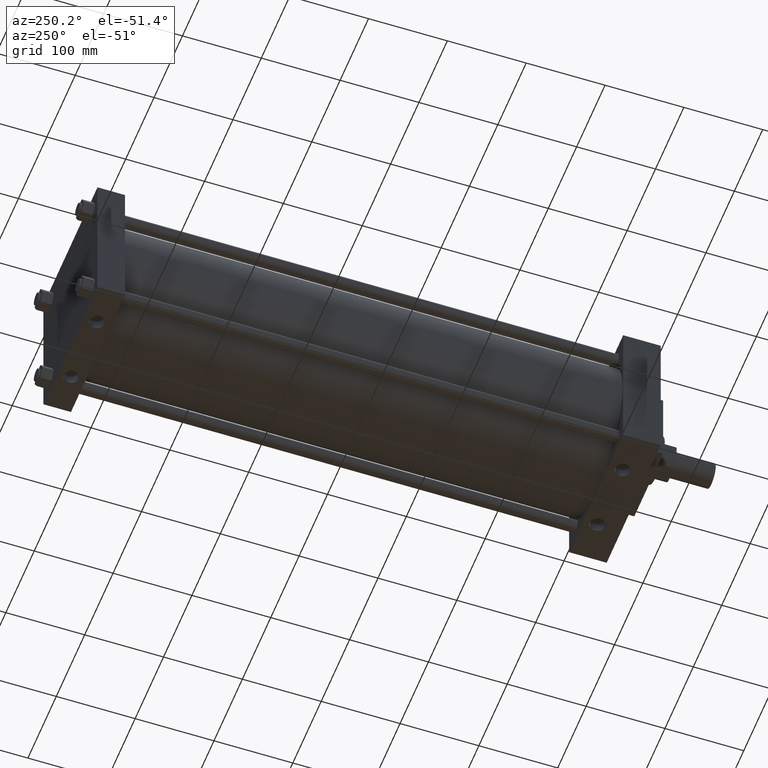
[diagram: clean part render]
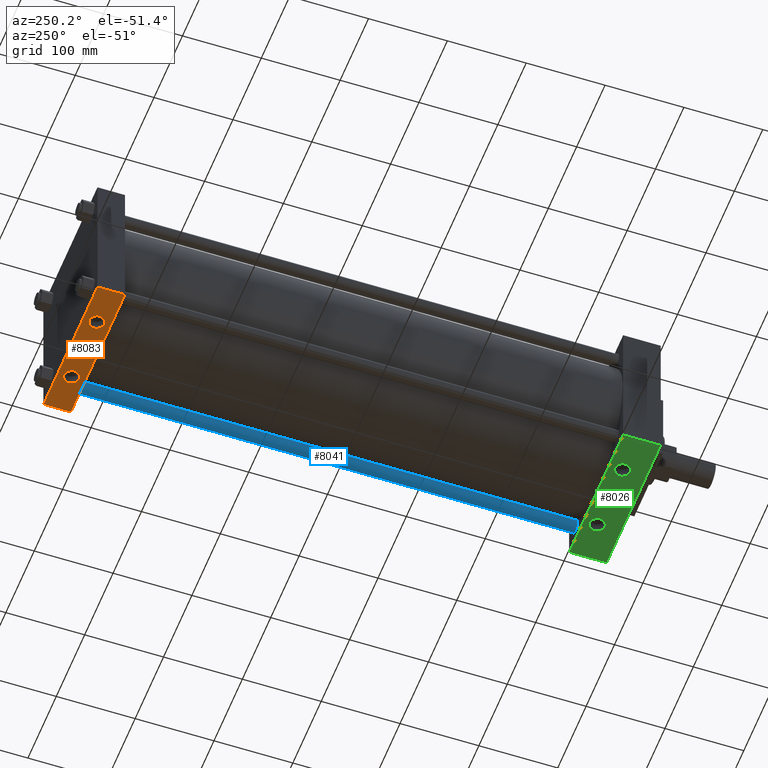
[diagram: same view with three faces highlighted in distinct colors, each labeled with its STEP entity id]
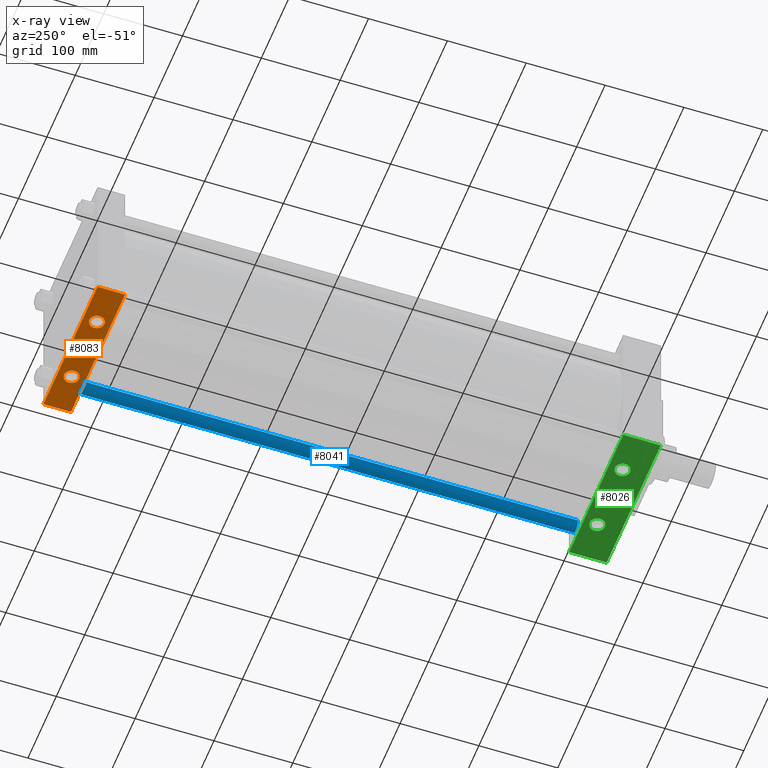
[diagram: x-ray of the same camera — body ghosted, the three highlighted faces saturated]
A machine part, auxiliary view with three faces highlighted in distinct colors.
The next image is the same camera in x-ray (body ghosted, the three faces saturated) — at least one of them is partly hidden behind the body in this view.
Their STEP definitions:

[orange] entity #8083 — the highlighted planar face has unit normal (0, 0, 1).
#2329=EDGE_CURVE('',#2334,#2335,#2330,.T.);
#2330=LINE('',#2331,#2332);
#2331=CARTESIAN_POINT('',(9.525000000E+001,7.270750000E+002,-9.525000000E+001));
#2332=VECTOR('',#2333,1.0E+000);
#2333=DIRECTION('',(-1.0E+000,0.0E+000,0.0E+000));
#2334=VERTEX_POINT('',#2336);
#2335=VERTEX_POINT('',#2337);
#2336=CARTESIAN_POINT('',(9.525000000E+001,7.270750000E+002,-9.525000000E+001));
#2337=CARTESIAN_POINT('',(-9.525000000E+001,7.270750000E+002,-9.525000000E+001));
#2579=VERTEX_POINT('',#2581);
#2581=CARTESIAN_POINT('',(9.525000000E+001,7.620000000E+002,-9.525000000E+001));
#2583=EDGE_CURVE('',#2579,#2588,#2584,.T.);
#2584=LINE('',#2585,#2586);
#2585=CARTESIAN_POINT('',(9.525000000E+001,7.620000000E+002,-9.525000000E+001));
#2586=VECTOR('',#2587,1.0E+000);
#2587=DIRECTION('',(-1.0E+000,0.0E+000,0.0E+000));
#2588=VERTEX_POINT('',#2589);
#2589=CARTESIAN_POINT('',(-9.525000000E+001,7.620000000E+002,-9.525000000E+001));
#2676=EDGE_CURVE('',#2682,#2682,#2677,.F.);
#2677=CIRCLE('',#2678,9.525000000E+000);
#2678=AXIS2_PLACEMENT_3D('',#2679,#2680,#2681);
#2679=CARTESIAN_POINT('',(-4.445000000E+001,7.445375000E+002,-9.525000000E+001));
#2680=DIRECTION('',(0.0E+000,0.0E+000,1.0E+000));
#2681=DIRECTION('',(1.0E+000,0.0E+000,0.0E+000));
#2682=VERTEX_POINT('',#2683);
#2683=CARTESIAN_POINT('',(-5.397500000E+001,7.445375000E+002,-9.525000000E+001));
#2690=FACE_OUTER_BOUND('',#2693,.T.);
#2691=FACE_BOUND('',#2694,.T.);
#2692=FACE_BOUND('',#2695,.T.);
#2693=EDGE_LOOP('',(#2696));
#2694=EDGE_LOOP('',(#2697));
#2695=EDGE_LOOP('',(#2706,#2707,#2708,#2709));
#2696=ORIENTED_EDGE('',*,*,#2676,.F.);
#2697=ORIENTED_EDGE('',*,*,#2698,.F.);
#2698=EDGE_CURVE('',#2704,#2704,#2699,.F.);
#2699=CIRCLE('',#2700,9.525000000E+000);
#2700=AXIS2_PLACEMENT_3D('',#2701,#2702,#2703);
#2701=CARTESIAN_POINT('',(4.445000000E+001,7.445375000E+002,-9.525000000E+001));
#2702=DIRECTION('',(0.0E+000,0.0E+000,1.0E+000));
#2703=DIRECTION('',(1.0E+000,0.0E+000,0.0E+000));
#2704=VERTEX_POINT('',#2705);
#2705=CARTESIAN_POINT('',(5.397500000E+001,7.445375000E+002,-9.525000000E+001));
#2706=ORIENTED_EDGE('',*,*,#2710,.T.);
#2707=ORIENTED_EDGE('',*,*,#2329,.T.);
#2708=ORIENTED_EDGE('',*,*,#2715,.T.);
#2709=ORIENTED_EDGE('',*,*,#2583,.F.);
#2710=EDGE_CURVE('',#2579,#2334,#2711,.T.);
#2711=LINE('',#2712,#2713);
#2712=CARTESIAN_POINT('',(9.525000000E+001,7.620000000E+002,-9.525000000E+001));
#2713=VECTOR('',#2714,1.0E+000);
#2714=DIRECTION('',(0.0E+000,-1.0E+000,0.0E+000));
#2715=EDGE_CURVE('',#2335,#2588,#2716,.T.);
#2716=LINE('',#2717,#2718);
#2717=CARTESIAN_POINT('',(-9.525000000E+001,7.620000000E+002,-9.525000000E+001));
#2718=VECTOR('',#2719,1.0E+000);
#2719=DIRECTION('',(0.0E+000,1.0E+000,0.0E+000));
#2720=PLANE('',#2721);
#2721=AXIS2_PLACEMENT_3D('',#2722,#2723,#2724);
#2722=CARTESIAN_POINT('',(9.525000000E+001,7.620000000E+002,-9.525000000E+001));
#2723=DIRECTION('',(0.0E+000,0.0E+000,1.0E+000));
#2724=DIRECTION('',(1.0E+000,0.0E+000,0.0E+000));
#8083=ADVANCED_FACE('',(#2690,#2691,#2692),#2720,.F.);

[blue] entity #8041 — the highlighted cylindrical surface (bore or boss wall) has radius 7.9375 mm, axis along (0, -1, 0).
#477=EDGE_CURVE('',#483,#483,#478,.T.);
#478=CIRCLE('',#479,7.937500000E+000);
#479=AXIS2_PLACEMENT_3D('',#480,#481,#482);
#480=CARTESIAN_POINT('',(7.277100000E+001,9.525000000E+001,-7.277100000E+001));
#481=DIRECTION('',(0.0E+000,1.0E+000,0.0E+000));
#482=DIRECTION('',(1.0E+000,0.0E+000,0.0E+000));
#483=VERTEX_POINT('',#484);
#484=CARTESIAN_POINT('',(7.277100000E+001,9.525000000E+001,-8.070850000E+001));
#1249=FACE_OUTER_BOUND('',#1251,.T.);
#1250=FACE_BOUND('',#1252,.T.);
#1251=EDGE_LOOP('',(#1253));
#1252=EDGE_LOOP('',(#1254));
#1253=ORIENTED_EDGE('',*,*,#1303,.F.);
#1254=ORIENTED_EDGE('',*,*,#477,.T.);
#1255=CYLINDRICAL_SURFACE('',#1256,7.937500000E+000);
#1256=AXIS2_PLACEMENT_3D('',#1257,#1258,#1259);
#1257=CARTESIAN_POINT('',(7.277100000E+001,7.270750000E+002,-7.277100000E+001));
#1258=DIRECTION('',(0.0E+000,-1.0E+000,0.0E+000));
#1259=DIRECTION('',(0.0E+000,0.0E+000,-1.0E+000));
#1303=EDGE_CURVE('',#1309,#1309,#1304,.T.);
#1304=CIRCLE('',#1305,7.937500000E+000);
#1305=AXIS2_PLACEMENT_3D('',#1306,#1307,#1308);
#1306=CARTESIAN_POINT('',(7.277100000E+001,7.270750000E+002,-7.277100000E+001));
#1307=DIRECTION('',(0.0E+000,1.0E+000,0.0E+000));
#1308=DIRECTION('',(1.0E+000,0.0E+000,0.0E+000));
#1309=VERTEX_POINT('',#1310);
#1310=CARTESIAN_POINT('',(8.070850000E+001,7.270750000E+002,-7.277100000E+001));
#8041=ADVANCED_FACE('',(#1249,#1250),#1255,.T.);

[green] entity #8026 — the highlighted planar face has unit normal (0, 0, 1).
#494=VERTEX_POINT('',#496);
#496=CARTESIAN_POINT('',(9.525000000E+001,9.525000000E+001,-9.525000000E+001));
#498=EDGE_CURVE('',#494,#503,#499,.T.);
#499=LINE('',#500,#501);
#500=CARTESIAN_POINT('',(9.525000000E+001,9.525000000E+001,-9.525000000E+001));
#501=VECTOR('',#502,1.0E+000);
#502=DIRECTION('',(-1.0E+000,0.0E+000,0.0E+000));
#503=VERTEX_POINT('',#504);
#504=CARTESIAN_POINT('',(-9.525000000E+001,9.525000000E+001,-9.525000000E+001));
#557=EDGE_CURVE('',#562,#563,#558,.T.);
#558=LINE('',#559,#560);
#559=CARTESIAN_POINT('',(9.525000000E+001,4.762500000E+001,-9.525000000E+001));
#560=VECTOR('',#561,1.0E+000);
#561=DIRECTION('',(-1.0E+000,0.0E+000,0.0E+000));
#562=VERTEX_POINT('',#564);
#563=VERTEX_POINT('',#565);
#564=CARTESIAN_POINT('',(9.525000000E+001,4.762500000E+001,-9.525000000E+001));
#565=CARTESIAN_POINT('',(-9.525000000E+001,4.762500000E+001,-9.525000000E+001));
#620=EDGE_CURVE('',#626,#626,#621,.F.);
#621=CIRCLE('',#622,9.525000000E+000);
#622=AXIS2_PLACEMENT_3D('',#623,#624,#625);
#623=CARTESIAN_POINT('',(-4.445000000E+001,7.778750000E+001,-9.525000000E+001));
#624=DIRECTION('',(0.0E+000,0.0E+000,1.0E+000));
#625=DIRECTION('',(1.0E+000,0.0E+000,0.0E+000));
#626=VERTEX_POINT('',#627);
#627=CARTESIAN_POINT('',(-5.397500000E+001,7.778750000E+001,-9.525000000E+001));
#634=FACE_OUTER_BOUND('',#637,.T.);
#635=FACE_BOUND('',#638,.T.);
#636=FACE_BOUND('',#639,.T.);
#637=EDGE_LOOP('',(#640));
#638=EDGE_LOOP('',(#641));
#639=EDGE_LOOP('',(#650,#651,#652,#653));
#640=ORIENTED_EDGE('',*,*,#620,.F.);
#641=ORIENTED_EDGE('',*,*,#642,.F.);
#642=EDGE_CURVE('',#648,#648,#643,.F.);
#643=CIRCLE('',#644,9.525000000E+000);
#644=AXIS2_PLACEMENT_3D('',#645,#646,#647);
#645=CARTESIAN_POINT('',(4.445000000E+001,7.778750000E+001,-9.525000000E+001));
#646=DIRECTION('',(0.0E+000,0.0E+000,1.0E+000));
#647=DIRECTION('',(1.0E+000,0.0E+000,0.0E+000));
#648=VERTEX_POINT('',#649);
#649=CARTESIAN_POINT('',(5.397500000E+001,7.778750000E+001,-9.525000000E+001));
#650=ORIENTED_EDGE('',*,*,#654,.T.);
#651=ORIENTED_EDGE('',*,*,#557,.T.);
#652=ORIENTED_EDGE('',*,*,#659,.T.);
#653=ORIENTED_EDGE('',*,*,#498,.F.);
#654=EDGE_CURVE('',#494,#562,#655,.T.);
#655=LINE('',#656,#657);
#656=CARTESIAN_POINT('',(9.525000000E+001,9.525000000E+001,-9.525000000E+001));
#657=VECTOR('',#658,1.0E+000);
#658=DIRECTION('',(0.0E+000,-1.0E+000,0.0E+000));
#659=EDGE_CURVE('',#563,#503,#660,.T.);
#660=LINE('',#661,#662);
#661=CARTESIAN_POINT('',(-9.525000000E+001,9.525000000E+001,-9.525000000E+001));
#662=VECTOR('',#663,1.0E+000);
#663=DIRECTION('',(0.0E+000,1.0E+000,0.0E+000));
#664=PLANE('',#665);
#665=AXIS2_PLACEMENT_3D('',#666,#667,#668);
#666=CARTESIAN_POINT('',(9.525000000E+001,9.525000000E+001,-9.525000000E+001));
#667=DIRECTION('',(0.0E+000,0.0E+000,1.0E+000));
#668=DIRECTION('',(1.0E+000,0.0E+000,0.0E+000));
#8026=ADVANCED_FACE('',(#634,#635,#636),#664,.F.);